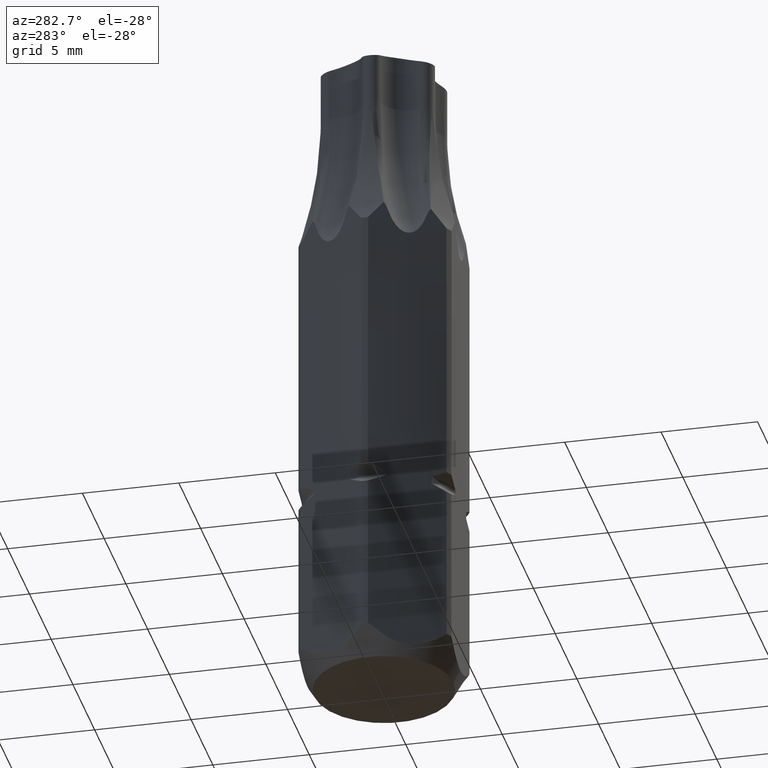
[diagram: clean part render]
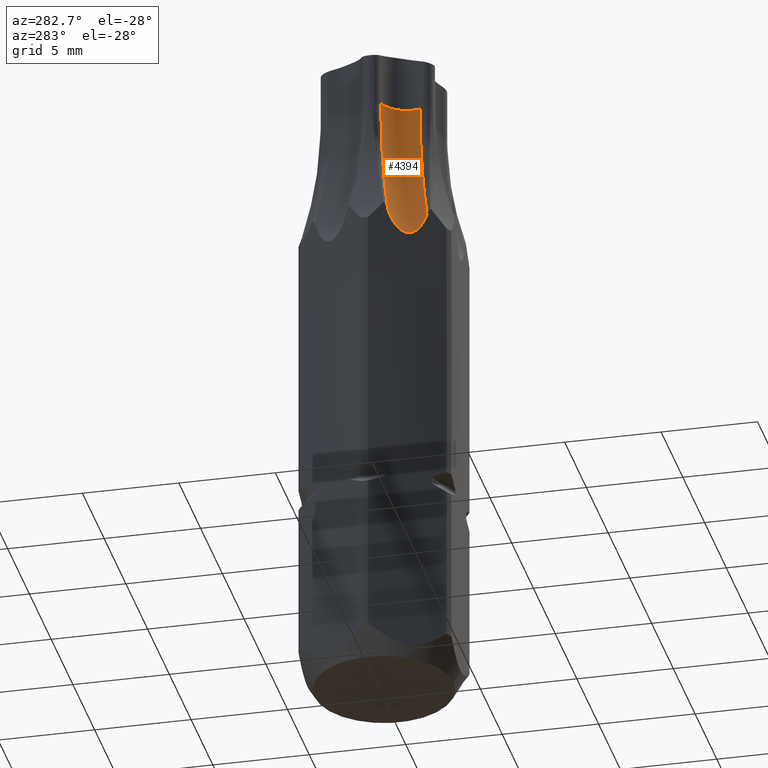
[diagram: same view with one face highlighted and labeled with its STEP entity id]
A machine part, auxiliary view. The second image highlights one B-rep face of the part: STEP entity #4394.
In plain terms, the highlighted toroidal blend (fillet) surface has major radius 18.53 mm and minor (blend) radius 1.47 mm.
Its self-contained STEP definition (entity closure, byte-faithful):
#2228=CARTESIAN_POINT('',(-1.884723913822E1,-1.208562423020E1,3.2E1));
#2229=DIRECTION('',(-5.E-1,8.660254037844E-1,0.E0));
#2230=DIRECTION('',(8.660254037844E-1,5.E-1,0.E0));
#2231=AXIS2_PLACEMENT_3D('',#2228,#2229,#2230);
#2327=CARTESIAN_POINT('',(-1.989007717305E1,-1.027937576980E1,3.2E1));
#2328=DIRECTION('',(-5.E-1,8.660254037844E-1,0.E0));
#2329=DIRECTION('',(8.660254037844E-1,5.E-1,0.E0));
#2330=AXIS2_PLACEMENT_3D('',#2327,#2328,#2329);
#2335=CARTESIAN_POINT('',(-3.321207423513E0,-1.9175E0,3.2E1));
#2336=DIRECTION('',(0.E0,0.E0,-1.E0));
#2337=DIRECTION('',(2.556612932940E-1,9.667664160030E-1,0.E0));
#2338=AXIS2_PLACEMENT_3D('',#2335,#2336,#2337);
#2343=CARTESIAN_POINT('',(-3.955209743421E0,-1.079375769803E0,
2.534642132236E1));
#2344=CARTESIAN_POINT('',(-3.941111216896E0,-1.103795134056E0,
2.526295912885E1));
#2345=CARTESIAN_POINT('',(-3.911983760688E0,-1.154245368104E0,
2.510719410152E1));
#2346=CARTESIAN_POINT('',(-3.867611131920E0,-1.231101015596E0,
2.491023793181E1));
#2347=CARTESIAN_POINT('',(-3.820881362034E0,-1.312039351264E0,
2.473717281568E1));
#2348=CARTESIAN_POINT('',(-3.770502901143E0,-1.399297405135E0,
2.458295684976E1));
#2349=CARTESIAN_POINT('',(-3.713019090283E0,-1.498862286157E0,
2.444109209238E1));
#2350=CARTESIAN_POINT('',(-3.645213175646E0,-1.616305575362E0,
2.431406189935E1));
#2351=CARTESIAN_POINT('',(-3.565688475318E0,-1.754046396786E0,
2.421372782656E1));
#2352=CARTESIAN_POINT('',(-3.475737610470E0,-1.909845864888E0,
2.415765901864E1));
#2353=CARTESIAN_POINT('',(-3.381942557228E0,-2.072303662601E0,
2.416101098557E1));
#2354=CARTESIAN_POINT('',(-3.293210800423E0,-2.225991573633E0,
2.422237120226E1));
#2355=CARTESIAN_POINT('',(-3.215132154467E0,-2.361227755414E0,
2.432573812279E1));
#2356=CARTESIAN_POINT('',(-3.148602965394E0,-2.476459691075E0,
2.445433751137E1));
#2357=CARTESIAN_POINT('',(-3.092605622662E0,-2.573449933776E0,
2.459561440820E1));
#2358=CARTESIAN_POINT('',(-3.043488580924E0,-2.658523145585E0,
2.474828168549E1));
#2359=CARTESIAN_POINT('',(-2.997967131265E0,-2.737368609227E0,
2.491865492576E1));
#2360=CARTESIAN_POINT('',(-2.954679010966E0,-2.812345832950E0,
2.511196314208E1));
#2361=CARTESIAN_POINT('',(-2.926183232013E0,-2.861701969898E0,
2.526465816515E1));
#2362=CARTESIAN_POINT('',(-2.912371708589E0,-2.885624230197E0,
2.534642132236E1));
#2865=CARTESIAN_POINT('',(-2.945385322371E0,-4.963533684756E-1,3.2E1));
#2866=CARTESIAN_POINT('',(-1.902547287539E0,-2.302601828869E0,3.2E1));
#2867=VERTEX_POINT('',#2865);
#2868=VERTEX_POINT('',#2866);
#3059=CARTESIAN_POINT('',(-3.955209743421E0,-1.079375769803E0,
2.534642132236E1));
#3060=VERTEX_POINT('',#3059);
#3061=CARTESIAN_POINT('',(-2.912371708589E0,-2.885624230197E0,
2.534642132236E1));
#3062=VERTEX_POINT('',#3061);
#4383=CARTESIAN_POINT('',(-1.936865815564E1,-1.11825E1,3.2E1));
#4384=DIRECTION('',(-5.E-1,8.660254037844E-1,0.E0));
#4385=DIRECTION('',(-8.660254037844E-1,-5.E-1,0.E0));
#4386=AXIS2_PLACEMENT_3D('',#4383,#4384,#4385);
#4387=TOROIDAL_SURFACE('',#4386,1.853E1,1.47E0);
#4388=ORIENTED_EDGE('',*,*,#4351,.F.);
#4389=ORIENTED_EDGE('',*,*,#4377,.T.);
#4390=ORIENTED_EDGE('',*,*,#4305,.T.);
#4391=ORIENTED_EDGE('',*,*,#4334,.F.);
#4392=EDGE_LOOP('',(#4388,#4389,#4390,#4391));
#4393=FACE_OUTER_BOUND('',#4392,.F.);
#4394=ADVANCED_FACE('',(#4393),#4387,.F.);
#2232=CIRCLE('',#2231,1.956604480265E1);
#2331=CIRCLE('',#2330,1.956604480265E1);
#2339=CIRCLE('',#2338,1.47E0);
#2363=B_SPLINE_CURVE_WITH_KNOTS('',3,(#2343,#2344,#2345,#2346,#2347,#2348,#2349,
#2350,#2351,#2352,#2353,#2354,#2355,#2356,#2357,#2358,#2359,#2360,#2361,#2362),
.UNSPECIFIED.,.F.,.F.,(4,1,1,1,1,1,1,1,1,1,1,1,1,1,1,1,1,4),(0.E0,
5.882352941176E-2,1.176470588235E-1,1.764705882353E-1,2.352941176471E-1,
2.941176470588E-1,3.529411764706E-1,4.117647058824E-1,4.705882352941E-1,
5.294117647059E-1,5.882352941176E-1,6.470588235294E-1,7.058823529412E-1,
7.647058823529E-1,8.235294117647E-1,8.823529411765E-1,9.411764705882E-1,1.E0),
.UNSPECIFIED.);
#4305=EDGE_CURVE('',#2868,#3062,#2232,.T.);
#4334=EDGE_CURVE('',#3060,#3062,#2363,.T.);
#4351=EDGE_CURVE('',#2867,#3060,#2331,.T.);
#4377=EDGE_CURVE('',#2867,#2868,#2339,.T.);